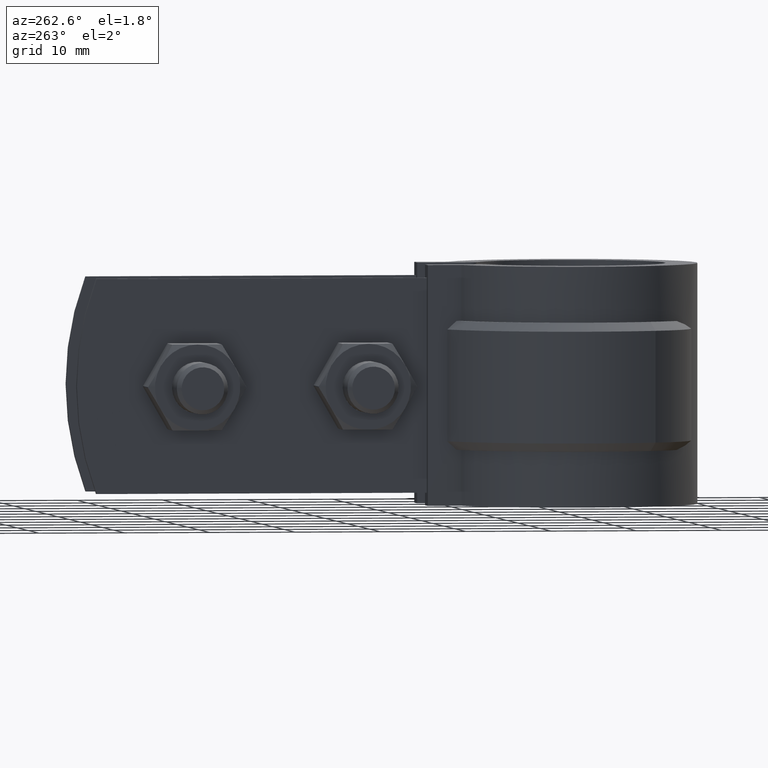
[diagram: clean part render]
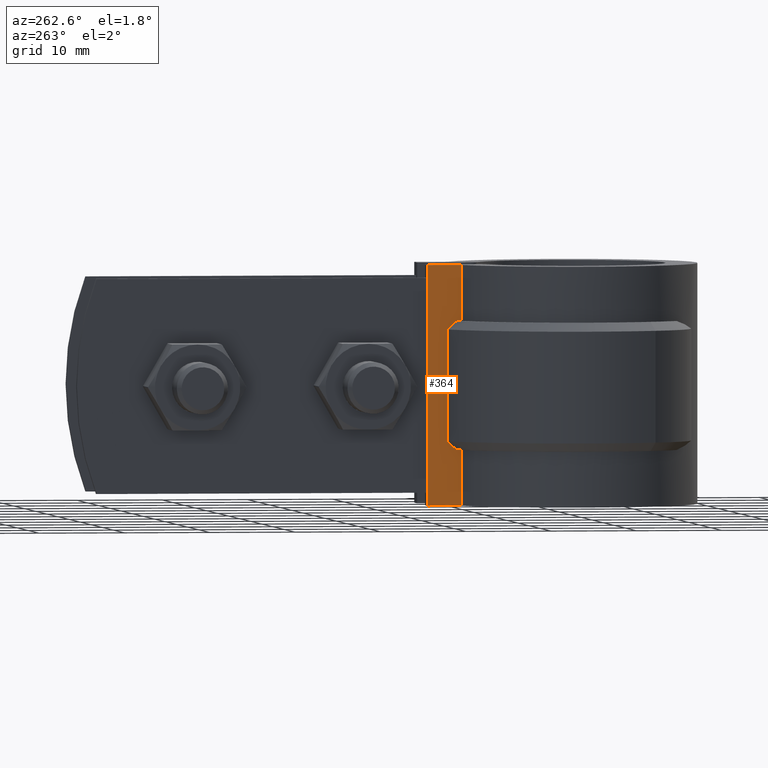
[diagram: same view with one face highlighted and labeled with its STEP entity id]
A machine part, auxiliary view. The second image highlights one B-rep face of the part: STEP entity #364.
In plain terms, the highlighted planar face has unit normal (1, -0, 0).
Its self-contained STEP definition (entity closure, byte-faithful):
#364 = ADVANCED_FACE( '', ( #612 ), #613, .F. );
#612 = FACE_OUTER_BOUND( '', #1206, .T. );
#613 = PLANE( '', #1207 );
#1206 = EDGE_LOOP( '', ( #2581, #2582, #2583, #2584, #2585, #2586, #2587, #2588, #2589, #2590 ) );
#1207 = AXIS2_PLACEMENT_3D( '', #2591, #2592, #2593 );
#2581 = ORIENTED_EDGE( '', *, *, #4290, .F. );
#2582 = ORIENTED_EDGE( '', *, *, #4280, .F. );
#2583 = ORIENTED_EDGE( '', *, *, #4291, .T. );
#2584 = ORIENTED_EDGE( '', *, *, #4292, .F. );
#2585 = ORIENTED_EDGE( '', *, *, #4293, .T. );
#2586 = ORIENTED_EDGE( '', *, *, #4294, .T. );
#2587 = ORIENTED_EDGE( '', *, *, #4295, .T. );
#2588 = ORIENTED_EDGE( '', *, *, #4296, .T. );
#2589 = ORIENTED_EDGE( '', *, *, #4297, .T. );
#2590 = ORIENTED_EDGE( '', *, *, #4298, .T. );
#2591 = CARTESIAN_POINT( '', ( -6.10000000000000, 13.5447785142467, -26.5000000000000 ) );
#2592 = DIRECTION( '', ( 1.00000000000000, -6.07153216591882E-017, 0.000000000000000 ) );
#2593 = DIRECTION( '', ( -6.07153216591882E-017, -1.00000000000000, 0.000000000000000 ) );
#4280 = EDGE_CURVE( '', #4868, #4869, #4870, .T. );
#4290 = EDGE_CURVE( '', #4869, #4888, #4889, .T. );
#4291 = EDGE_CURVE( '', #4868, #4890, #4891, .T. );
#4292 = EDGE_CURVE( '', #4892, #4890, #4893, .T. );
#4293 = EDGE_CURVE( '', #4892, #4894, #4895, .T. );
#4294 = EDGE_CURVE( '', #4894, #4896, #4897, .T. );
#4295 = EDGE_CURVE( '', #4896, #4898, #4899, .T. );
#4296 = EDGE_CURVE( '', #4898, #4900, #4901, .T. );
#4297 = EDGE_CURVE( '', #4900, #4902, #4903, .T. );
#4298 = EDGE_CURVE( '', #4902, #4888, #4904, .T. );
#4868 = VERTEX_POINT( '', #6402 );
#4869 = VERTEX_POINT( '', #6403 );
#4870 = LINE( '', #6404, #6405 );
#4888 = VERTEX_POINT( '', #6428 );
#4889 = LINE( '', #6429, #6430 );
#4890 = VERTEX_POINT( '', #6431 );
#4891 = LINE( '', #6432, #6433 );
#4892 = VERTEX_POINT( '', #6434 );
#4893 = LINE( '', #6435, #6436 );
#4894 = VERTEX_POINT( '', #6437 );
#4895 = B_SPLINE_CURVE_WITH_KNOTS( '', 3, ( #6438, #6439, #6440, #6441 ), .UNSPECIFIED., .F., .F., ( 4, 4 ), ( 0.000000000000000, 0.00147444161299851 ), .UNSPECIFIED. );
#4896 = VERTEX_POINT( '', #6442 );
#4897 = LINE( '', #6443, #6444 );
#4898 = VERTEX_POINT( '', #6445 );
#4899 = B_SPLINE_CURVE_WITH_KNOTS( '', 3, ( #6446, #6447, #6448, #6449 ), .UNSPECIFIED., .F., .F., ( 4, 4 ), ( 0.000000000000000, 0.00147444161299851 ), .UNSPECIFIED. );
#4900 = VERTEX_POINT( '', #6450 );
#4901 = LINE( '', #6451, #6452 );
#4902 = VERTEX_POINT( '', #6453 );
#4903 = LINE( '', #6454, #6455 );
#4904 = LINE( '', #6456, #6457 );
#6402 = CARTESIAN_POINT( '', ( -6.09999999999998, 13.5447785142467, -26.5000000000000 ) );
#6403 = CARTESIAN_POINT( '', ( -6.09999999999999, 17.4580146622341, -26.5000000000000 ) );
#6404 = CARTESIAN_POINT( '', ( -6.10000000000000, 13.5447785142467, -26.5000000000000 ) );
#6405 = VECTOR( '', #8122, 1000.00000000000 );
#6428 = CARTESIAN_POINT( '', ( -6.09999999999999, 17.4580146622341, 1.50000000000000 ) );
#6429 = CARTESIAN_POINT( '', ( -6.10000000000000, 17.4580146622341, -26.5000000000000 ) );
#6430 = VECTOR( '', #8140, 1000.00000000000 );
#6431 = CARTESIAN_POINT( '', ( -6.09999999999998, 13.5447785142467, -20.0000000000000 ) );
#6432 = CARTESIAN_POINT( '', ( -6.09999999999998, 13.5447785142467, -26.5000000000000 ) );
#6433 = VECTOR( '', #8141, 1000.00000000000 );
#6434 = CARTESIAN_POINT( '', ( -6.10000000000000, 14.0913457483663, -20.0000000000000 ) );
#6435 = CARTESIAN_POINT( '', ( -6.10000000000000, 13.5447785142467, -20.0000000000000 ) );
#6436 = VECTOR( '', #8142, 1000.00000000000 );
#6437 = CARTESIAN_POINT( '', ( -6.10000000000000, 15.1748484341690, -19.0000000000000 ) );
#6438 = CARTESIAN_POINT( '', ( -6.10000000000000, 14.0913457483663, -20.0000000000000 ) );
#6439 = CARTESIAN_POINT( '', ( -6.10000000000000, 14.4534554887810, -19.6676904232475 ) );
#6440 = CARTESIAN_POINT( '', ( -6.10000000000000, 14.8145635994486, -19.3342872369313 ) );
#6441 = CARTESIAN_POINT( '', ( -6.10000000000000, 15.1748484341690, -19.0000000000000 ) );
#6442 = CARTESIAN_POINT( '', ( -6.10000000000000, 15.1748484341690, -6.00000000000000 ) );
#6443 = CARTESIAN_POINT( '', ( -6.10000000000000, 15.1748484341690, -20.0000000000000 ) );
#6444 = VECTOR( '', #8143, 1000.00000000000 );
#6445 = CARTESIAN_POINT( '', ( -6.10000000000000, 14.0913457483663, -5.00000000000000 ) );
#6446 = CARTESIAN_POINT( '', ( -6.10000000000000, 15.1748484341690, -6.00000000000000 ) );
#6447 = CARTESIAN_POINT( '', ( -6.10000000000000, 14.8145635994486, -5.66571276306872 ) );
#6448 = CARTESIAN_POINT( '', ( -6.10000000000000, 14.4534554887810, -5.33230957675250 ) );
#6449 = CARTESIAN_POINT( '', ( -6.10000000000000, 14.0913457483663, -5.00000000000000 ) );
#6450 = CARTESIAN_POINT( '', ( -6.09999999999998, 13.5447785142467, -5.00000000000000 ) );
#6451 = CARTESIAN_POINT( '', ( -6.10000000000000, 13.5447785142467, -5.00000000000000 ) );
#6452 = VECTOR( '', #8144, 1000.00000000000 );
#6453 = CARTESIAN_POINT( '', ( -6.09999999999998, 13.5447785142467, 1.50000000000000 ) );
#6454 = CARTESIAN_POINT( '', ( -6.09999999999998, 13.5447785142467, -26.5000000000000 ) );
#6455 = VECTOR( '', #8145, 1000.00000000000 );
#6456 = CARTESIAN_POINT( '', ( -6.10000000000000, 13.5447785142467, 1.50000000000000 ) );
#6457 = VECTOR( '', #8146, 1000.00000000000 );
#8122 = DIRECTION( '', ( 6.07153216591882E-017, 1.00000000000000, 0.000000000000000 ) );
#8140 = DIRECTION( '', ( 0.000000000000000, 0.000000000000000, 1.00000000000000 ) );
#8141 = DIRECTION( '', ( 0.000000000000000, 0.000000000000000, 1.00000000000000 ) );
#8142 = DIRECTION( '', ( -6.07153216591882E-017, -1.00000000000000, 0.000000000000000 ) );
#8143 = DIRECTION( '', ( 0.000000000000000, 0.000000000000000, 1.00000000000000 ) );
#8144 = DIRECTION( '', ( -6.07153216591882E-017, -1.00000000000000, 0.000000000000000 ) );
#8145 = DIRECTION( '', ( 0.000000000000000, 0.000000000000000, 1.00000000000000 ) );
#8146 = DIRECTION( '', ( 6.07153216591882E-017, 1.00000000000000, 0.000000000000000 ) );